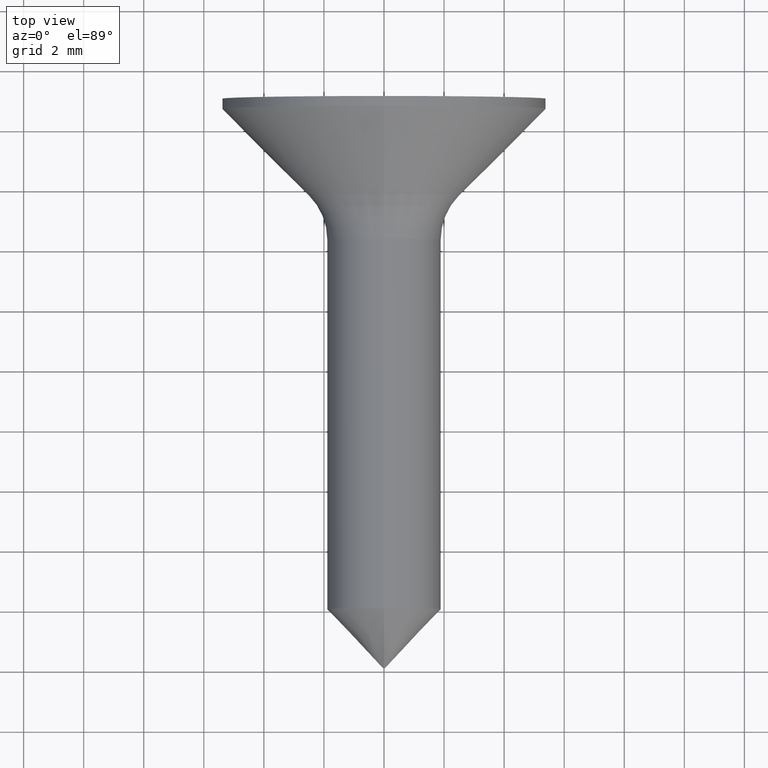
[diagram: clean part render]
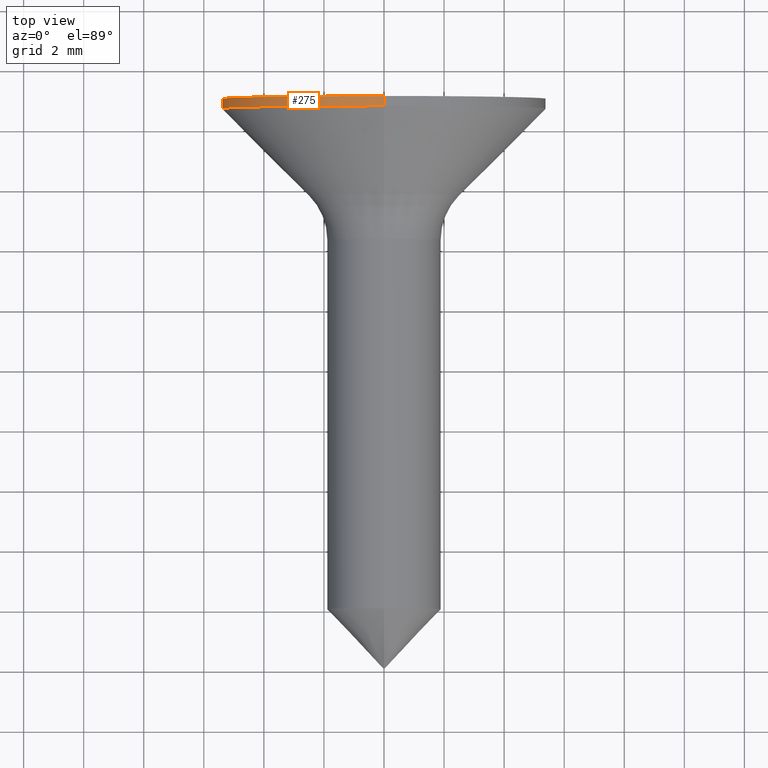
[diagram: same view with one face highlighted and labeled with its STEP entity id]
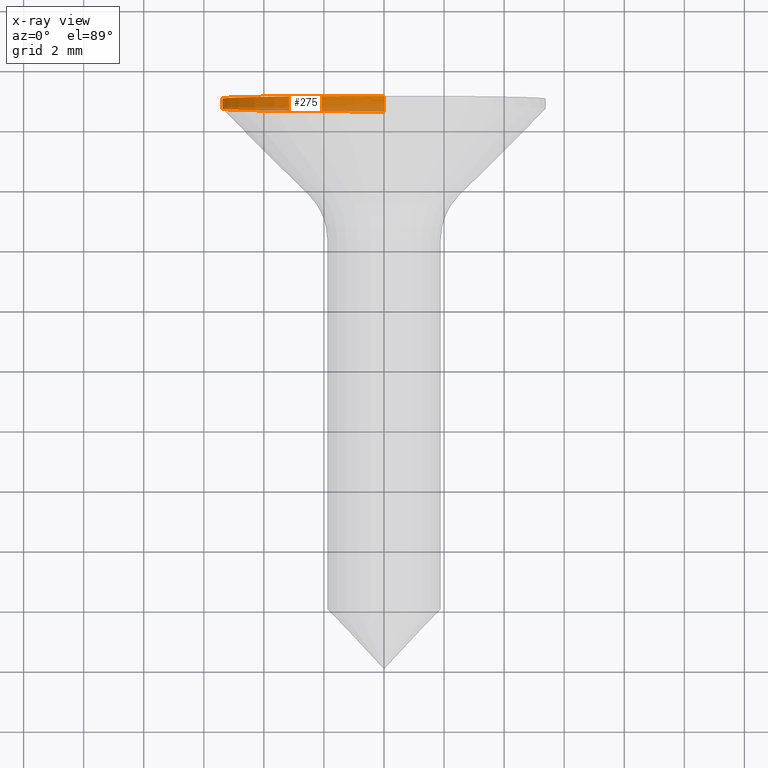
[diagram: x-ray of the same camera — body ghosted, the highlighted face saturated]
A machine part, top view. The second image highlights one B-rep face of the part: STEP entity #275.
The next image is the same camera in x-ray: the body ghosted, the highlighted face saturated — about 31% of this face is hidden behind the body in this view.
In plain terms, the highlighted cylindrical surface (partial cylindrical patch) has radius 5.4 mm, axis along (-0, -1, -0).
Its self-contained STEP definition (entity closure, byte-faithful):
#198 = DIRECTION ( 'NONE',  ( 0.000000000000000000, 0.000000000000000000, -1.000000000000000000 ) ) ;
#275 = ADVANCED_FACE ( 'NONE', ( #5334 ), #15718, .T. ) ;
#827 = ORIENTED_EDGE ( 'NONE', *, *, #3214, .F. ) ;
#998 = VERTEX_POINT ( 'NONE', #8042 ) ;
#1354 = ORIENTED_EDGE ( 'NONE', *, *, #15072, .T. ) ;
#1449 = LINE ( 'NONE', #16115, #5400 ) ;
#2696 = EDGE_CURVE ( 'NONE', #998, #15796, #12362, .T. ) ;
#2922 = VERTEX_POINT ( 'NONE', #16892 ) ;
#3214 = EDGE_CURVE ( 'NONE', #998, #4695, #14421, .T. ) ;
#3919 = AXIS2_PLACEMENT_3D ( 'NONE', #9244, #10576, #7856 ) ;
#3933 = CARTESIAN_POINT ( 'NONE',  ( 0.000000000000000000, 19.00000000000000000, -5.400000000000000355 ) ) ;
#4478 = VECTOR ( 'NONE', #16329, 1000.000000000000000 ) ;
#4695 = VERTEX_POINT ( 'NONE', #14114 ) ;
#5334 = FACE_OUTER_BOUND ( 'NONE', #9766, .T. ) ;
#5400 = VECTOR ( 'NONE', #7022, 1000.000000000000000 ) ;
#5466 = ORIENTED_EDGE ( 'NONE', *, *, #2696, .T. ) ;
#7022 = DIRECTION ( 'NONE',  ( -0.000000000000000000, -1.000000000000000000, -0.000000000000000000 ) ) ;
#7675 = AXIS2_PLACEMENT_3D ( 'NONE', #14919, #11043, #13714 ) ;
#7856 = DIRECTION ( 'NONE',  ( 0.000000000000000000, 0.000000000000000000, -1.000000000000000000 ) ) ;
#8042 = CARTESIAN_POINT ( 'NONE',  ( 6.613092715395707467E-16, 19.00000000000000000, 5.400000000000000355 ) ) ;
#8723 = CIRCLE ( 'NONE', #12464, 5.400000000000000355 ) ;
#8899 = ORIENTED_EDGE ( 'NONE', *, *, #14923, .F. ) ;
#9244 = CARTESIAN_POINT ( 'NONE',  ( 0.000000000000000000, 0.000000000000000000, 0.000000000000000000 ) ) ;
#9766 = EDGE_LOOP ( 'NONE', ( #827, #5466, #1354, #8899 ) ) ;
#10576 = DIRECTION ( 'NONE',  ( -0.000000000000000000, -1.000000000000000000, -0.000000000000000000 ) ) ;
#11043 = DIRECTION ( 'NONE',  ( -0.000000000000000000, -1.000000000000000000, -0.000000000000000000 ) ) ;
#12054 = DIRECTION ( 'NONE',  ( -0.000000000000000000, -1.000000000000000000, -0.000000000000000000 ) ) ;
#12362 = CIRCLE ( 'NONE', #7675, 5.400000000000000355 ) ;
#12464 = AXIS2_PLACEMENT_3D ( 'NONE', #13285, #12054, #198 ) ;
#13285 = CARTESIAN_POINT ( 'NONE',  ( 0.000000000000000000, 18.66999999999999815, 0.000000000000000000 ) ) ;
#13714 = DIRECTION ( 'NONE',  ( 0.000000000000000000, 0.000000000000000000, -1.000000000000000000 ) ) ;
#14114 = CARTESIAN_POINT ( 'NONE',  ( 0.000000000000000000, 18.66999999999999815, 5.400000000000000355 ) ) ;
#14421 = LINE ( 'NONE', #16207, #4478 ) ;
#14919 = CARTESIAN_POINT ( 'NONE',  ( 0.000000000000000000, 19.00000000000000000, 0.000000000000000000 ) ) ;
#14923 = EDGE_CURVE ( 'NONE', #4695, #2922, #8723, .T. ) ;
#15072 = EDGE_CURVE ( 'NONE', #15796, #2922, #1449, .T. ) ;
#15718 = CYLINDRICAL_SURFACE ( 'NONE', #3919, 5.400000000000000355 ) ;
#15796 = VERTEX_POINT ( 'NONE', #3933 ) ;
#16115 = CARTESIAN_POINT ( 'NONE',  ( 0.000000000000000000, 0.000000000000000000, -5.400000000000000355 ) ) ;
#16207 = CARTESIAN_POINT ( 'NONE',  ( 6.613092715395707467E-16, 0.000000000000000000, 5.400000000000000355 ) ) ;
#16329 = DIRECTION ( 'NONE',  ( -0.000000000000000000, -1.000000000000000000, -0.000000000000000000 ) ) ;
#16892 = CARTESIAN_POINT ( 'NONE',  ( 6.613092715395708453E-16, 18.66999999999999815, -5.400000000000000355 ) ) ;